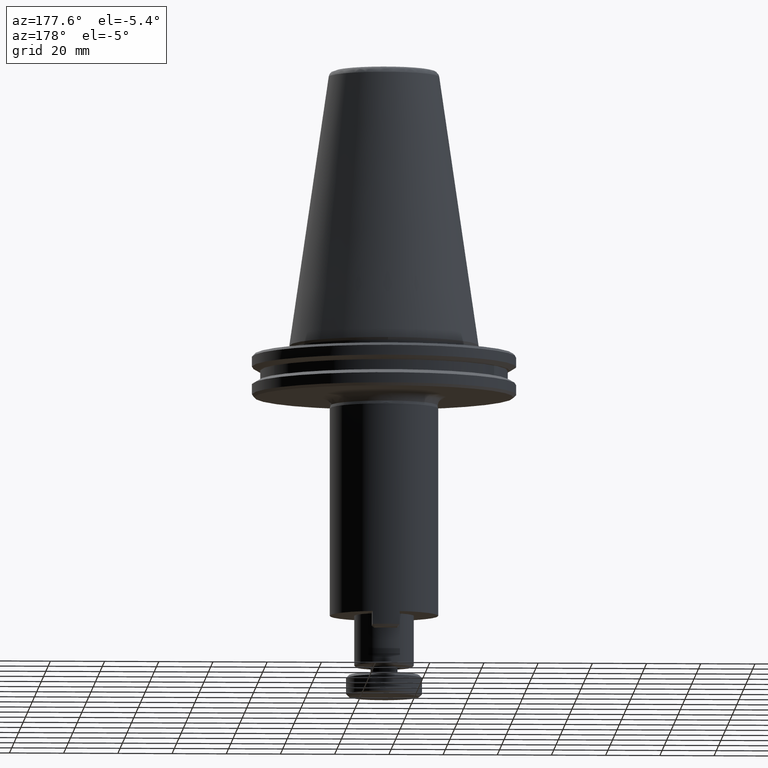
[diagram: clean part render]
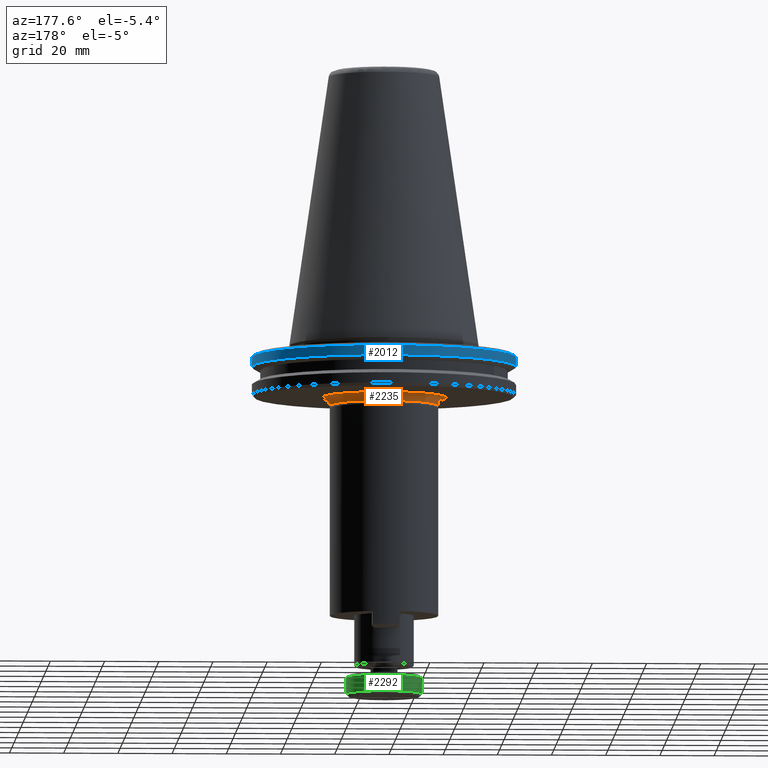
[diagram: same view with three faces highlighted in distinct colors, each labeled with its STEP entity id]
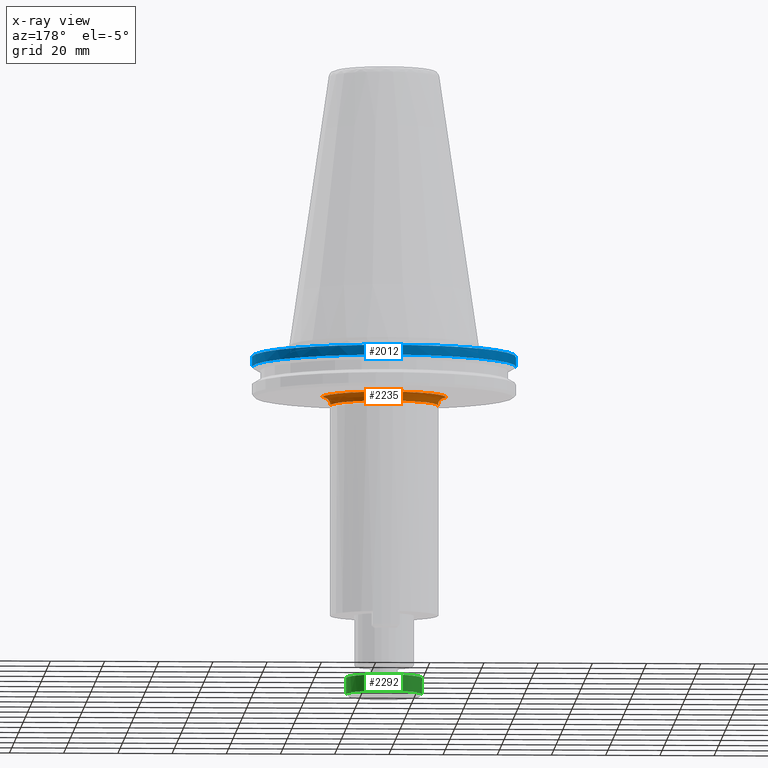
[diagram: x-ray of the same camera — body ghosted, the three highlighted faces saturated]
A machine part, auxiliary view with three faces highlighted in distinct colors.
The next image is the same camera in x-ray (body ghosted, the three faces saturated) — at least one of them is partly hidden behind the body in this view.
Their STEP definitions:

[orange] entity #2235 — the highlighted face is a freeform B-spline surface patch.
#37 = ORIENTED_EDGE ( 'NONE', *, *, #1304, .F. ) ;
#44 = CARTESIAN_POINT ( 'NONE',  ( 69.82967041055849200, 141.6437029630840200, 78.29158864688048400 ) ) ;
#101 = CARTESIAN_POINT ( 'NONE',  ( 69.08611592185569400, 112.6979040630085800, 79.55142735088048800 ) ) ;
#131 = CARTESIAN_POINT ( 'NONE',  ( 112.2400091371738900, 102.4230254990840100, 79.55142735095384400 ) ) ;
#162 = CARTESIAN_POINT ( 'NONE',  ( 79.42659639946742800, 122.9088401011851500, 79.55142735088047300 ) ) ;
#172 = CARTESIAN_POINT ( 'NONE',  ( 100.2173177748814500, 122.5150694197451700, 79.55142735088048800 ) ) ;
#182 = CARTESIAN_POINT ( 'NONE',  ( 95.82956039122231600, 124.3116237566803500, 79.55142735088047300 ) ) ;
#192 = CARTESIAN_POINT ( 'NONE',  ( 74.53022195948841500, 119.6723377473868100, 79.55142735088048800 ) ) ;
#201 = CARTESIAN_POINT ( 'NONE',  ( 67.57192797645257100, 108.8749657311327900, 79.55142735088047300 ) ) ;
#202 = CARTESIAN_POINT ( 'NONE',  ( 111.3380267558167800, 108.7725781759253900, 79.55142735088047300 ) ) ;
#209 = CARTESIAN_POINT ( 'NONE',  ( 100.3367708077787800, 122.4506467586634100, 79.55142735088047300 ) ) ;
#211 = CARTESIAN_POINT ( 'NONE',  ( 107.6935809425755100, 116.0849135061009200, 79.55142735088047300 ) ) ;
#218 = CARTESIAN_POINT ( 'NONE',  ( 100.5033496748084000, 122.3595147775322300, 79.55142735088047300 ) ) ;
#219 = CARTESIAN_POINT ( 'NONE',  ( 107.6875039913910700, 116.0930310580290600, 79.55142735088047300 ) ) ;
#234 = CARTESIAN_POINT ( 'NONE',  ( 110.4082262411640700, 111.3873885215951800, 79.55142735088047300 ) ) ;
#278 = CARTESIAN_POINT ( 'NONE',  ( 110.4998478465585000, 102.4230254990840200, 79.74108861888048200 ) ) ;
#328 = CARTESIAN_POINT ( 'NONE',  ( 71.23007053101334000, 116.1430164842722800, 79.55142735088050200 ) ) ;
#329 = CARTESIAN_POINT ( 'NONE',  ( 109.2400091424898400, 102.4230254990840100, 76.55142735182478500 ) ) ;
#339 = CARTESIAN_POINT ( 'NONE',  ( 71.21502867099320600, 116.1230315020119400, 79.55142735088045900 ) ) ;
#376 = CARTESIAN_POINT ( 'NONE',  ( 66.64000914794310400, 102.4230254990840100, 79.55142735095384400 ) ) ;
#384 = CARTESIAN_POINT ( 'NONE',  ( 66.85874957392455500, 105.5739982499407700, 79.55142735088047300 ) ) ;
#397 = CARTESIAN_POINT ( 'NONE',  ( 95.16390518570659700, 124.4929173802060400, 79.55142735088048800 ) ) ;
#398 = CARTESIAN_POINT ( 'NONE',  ( 67.18239086190111200, 107.4247439521679000, 79.55142735088045900 ) ) ;
#417 = CARTESIAN_POINT ( 'NONE',  ( 100.1948072163147100, 122.5271311004023000, 79.55142735088047300 ) ) ;
#426 = CARTESIAN_POINT ( 'NONE',  ( 83.94289279294949300, 124.5504977346862900, 79.55142735088047300 ) ) ;
#438 = CARTESIAN_POINT ( 'NONE',  ( 85.44615269204958000, 124.8796524350692900, 79.55142735088047300 ) ) ;
#446 = CARTESIAN_POINT ( 'NONE',  ( 77.94467221972819000, 122.1322499534878400, 79.55142735088047300 ) ) ;
#450 = CARTESIAN_POINT ( 'NONE',  ( 104.4522274386165000, 119.5832690376997200, 79.55142735088047300 ) ) ;
#459 = CARTESIAN_POINT ( 'NONE',  ( 75.61853575680871100, 120.5654559239073400, 79.55142735088047300 ) ) ;
#460 = CARTESIAN_POINT ( 'NONE',  ( 104.5070229961280400, 119.5351715291437700, 79.55142735088045900 ) ) ;
#461 = CARTESIAN_POINT ( 'NONE',  ( 111.4639882672898600, 108.3239058157237900, 79.55142735088047300 ) ) ;
#471 = CARTESIAN_POINT ( 'NONE',  ( 109.6174578020515500, 113.0642541325533200, 79.55142735088047300 ) ) ;
#511 = CARTESIAN_POINT ( 'NONE',  ( 69.62502163855849300, 142.0530005070840200, 76.25192710088046500 ) ) ;
#528 = CARTESIAN_POINT ( 'NONE',  ( 68.38017043855848000, 144.5427029080840100, 79.74108861888048200 ) ) ;
#582 = CARTESIAN_POINT ( 'NONE',  ( 71.62701750753635100, 116.6571113885595700, 79.55142735088047300 ) ) ;
#592 = CARTESIAN_POINT ( 'NONE',  ( 72.98808305552374500, 118.2440280811069600, 79.55142735088047300 ) ) ;
#602 = CARTESIAN_POINT ( 'NONE',  ( 112.1411967943297600, 104.5697013495551900, 79.55142735088045900 ) ) ;
#629 = CARTESIAN_POINT ( 'NONE',  ( 112.0465614859420600, 105.3867891194260400, 79.55142735088047300 ) ) ;
#633 = CARTESIAN_POINT ( 'NONE',  ( 67.56337267522347600, 108.8458559288796200, 79.55142735088051600 ) ) ;
#647 = CARTESIAN_POINT ( 'NONE',  ( 95.10983181770991700, 124.5068758695078800, 79.55142735088047300 ) ) ;
#648 = CARTESIAN_POINT ( 'NONE',  ( 67.55768158021317000, 108.8264444339003200, 79.55142735088050200 ) ) ;
#656 = CARTESIAN_POINT ( 'NONE',  ( 66.70731026624778800, 104.4461434361665900, 79.55142735088047300 ) ) ;
#681 = CARTESIAN_POINT ( 'NONE',  ( 73.84587525367817300, 119.0754966413940500, 79.55142735088050200 ) ) ;
#682 = CARTESIAN_POINT ( 'NONE',  ( 68.96550495089542200, 112.4547087698491300, 79.55142735088045900 ) ) ;
#691 = CARTESIAN_POINT ( 'NONE',  ( 78.76145082909438600, 122.5677288363557300, 79.55142735088045900 ) ) ;
#692 = CARTESIAN_POINT ( 'NONE',  ( 107.7746600585674900, 115.9760298940223700, 79.55142735088050200 ) ) ;
#696 = EDGE_CURVE ( 'NONE', #2432, #1302, #2472, .T. ) ;
#701 = CARTESIAN_POINT ( 'NONE',  ( 103.7777907613416100, 120.1719445585520000, 79.55142735088044500 ) ) ;
#717 = CARTESIAN_POINT ( 'NONE',  ( 111.1470637962499200, 109.4275439282103000, 79.55142735088051600 ) ) ;
#736 = CARTESIAN_POINT ( 'NONE',  ( 108.0537896206017600, 115.5921403285894200, 79.55142735088047300 ) ) ;
#752 = VERTEX_POINT ( 'NONE', #329 ) ;
#762 = CARTESIAN_POINT ( 'NONE',  ( 109.2549966465584800, 142.0530005070840200, 76.25192710088046500 ) ) ;
#777 = CARTESIAN_POINT ( 'NONE',  ( 112.5395093925585000, 102.4230254990840100, 79.53643984688046900 ) ) ;
#842 = CARTESIAN_POINT ( 'NONE',  ( 66.64000914794310400, 102.4230254990840100, 79.55142735095384400 ) ) ;
#891 = CARTESIAN_POINT ( 'NONE',  ( 66.64005363040263300, 103.4372938787043400, 79.55142735088047300 ) ) ;
#930 = CARTESIAN_POINT ( 'NONE',  ( 68.27578919061875200, 110.9466696974165700, 79.55142735088048800 ) ) ;
#951 = CARTESIAN_POINT ( 'NONE',  ( 107.7071312116274700, 116.0667885552121000, 79.55142735088047300 ) ) ;
#967 = CARTESIAN_POINT ( 'NONE',  ( 111.3455128429749000, 108.7467372357636700, 79.55142735088047300 ) ) ;
#1011 = FACE_OUTER_BOUND ( 'NONE', #1449, .T. ) ;
#1012 = CARTESIAN_POINT ( 'NONE',  ( 66.34050889255848900, 148.6220259990840000, 79.53643984688046900 ) ) ;
#1092 = CARTESIAN_POINT ( 'NONE',  ( 109.2400091424898400, 102.4230254990840100, 76.55142735182478500 ) ) ;
#1127 = CARTESIAN_POINT ( 'NONE',  ( 66.87629578830949100, 105.6982921994538300, 79.55142735088047300 ) ) ;
#1138 = CARTESIAN_POINT ( 'NONE',  ( 66.64000914794310400, 102.4230254990840100, 79.55142735095384400 ) ) ;
#1151 = CARTESIAN_POINT ( 'NONE',  ( 87.07691849041386000, 125.1354511577485500, 79.55142735088047300 ) ) ;
#1168 = CARTESIAN_POINT ( 'NONE',  ( 69.01547330124076000, 112.5562183748032400, 79.55142735088047300 ) ) ;
#1183 = CARTESIAN_POINT ( 'NONE',  ( 84.05816659884996500, 124.5788229419997300, 79.55142735088047300 ) ) ;
#1186 = CARTESIAN_POINT ( 'NONE',  ( 107.7274350831099400, 116.0395881701616200, 79.55142735088047300 ) ) ;
#1193 = CARTESIAN_POINT ( 'NONE',  ( 110.0570601310678900, 112.1589619769150100, 79.55142735088047300 ) ) ;
#1204 = CARTESIAN_POINT ( 'NONE',  ( 108.4147082614181800, 115.0735144850850600, 79.55142735088047300 ) ) ;
#1218 = CARTESIAN_POINT ( 'NONE',  ( 111.3971559865614000, 108.5656981084851900, 79.55142735088047300 ) ) ;
#1234 =( BOUNDED_SURFACE ( )  B_SPLINE_SURFACE ( 3, 3, ( 
 ( #2708, #762, #511, #1248 ),
 ( #2942, #1494, #44, #1749 ),
 ( #278, #1981, #528, #2234 ),
 ( #777, #2473, #1012, #2722 ) ),
 .UNSPECIFIED., .F., .F., .F. ) 
 B_SPLINE_SURFACE_WITH_KNOTS ( ( 4, 4 ),
 ( 4, 4 ),
 ( 0.0000000000000000000, 1.000000000000000000 ),
 ( 0.0000000000000000000, 1.000000000000000000 ),
 .UNSPECIFIED. ) 
 GEOMETRIC_REPRESENTATION_ITEM ( )  RATIONAL_B_SPLINE_SURFACE ( (
 ( 1.000000000000000000, 0.3333333333333330400, 0.3333333333333330400, 1.000000000000000000),
 ( 0.7553208711179720800, 0.2517736237059909900, 0.2517736237059909900, 0.7553208711179720800),
 ( 0.7553208711179720800, 0.2517736237059909900, 0.2517736237059909900, 0.7553208711179720800),
 ( 1.000000000000000000, 0.3333333333333330400, 0.3333333333333330400, 1.000000000000000000) ) ) 
 REPRESENTATION_ITEM ( '' )  SURFACE ( )  );
#1248 = CARTESIAN_POINT ( 'NONE',  ( 69.62502163855849300, 102.4230254990840100, 76.25192710088047900 ) ) ;
#1302 = VERTEX_POINT ( 'NONE', #842 ) ;
#1304 = EDGE_CURVE ( 'NONE', #1993, #752, #2576, .T. ) ;
#1313 = CARTESIAN_POINT ( 'NONE',  ( 72.06736594745760300, 117.1986404491273200, 79.55142735088048800 ) ) ;
#1324 = CARTESIAN_POINT ( 'NONE',  ( 89.44000914255849500, 102.4230254990840100, 76.55142735184156800 ) ) ;
#1368 = CARTESIAN_POINT ( 'NONE',  ( 112.0667353713408300, 105.2297853747960500, 79.55142735088048800 ) ) ;
#1415 = CARTESIAN_POINT ( 'NONE',  ( 80.15123694124376600, 123.2543508553091700, 79.55142735088045900 ) ) ;
#1425 = CARTESIAN_POINT ( 'NONE',  ( 109.0979600279792500, 114.0130407766119700, 79.55142735088047300 ) ) ;
#1432 = CARTESIAN_POINT ( 'NONE',  ( 104.9527272468112900, 119.1343284125098400, 79.55142735088048800 ) ) ;
#1434 = CARTESIAN_POINT ( 'NONE',  ( 69.64000914262715000, 102.4230254990840100, 76.55142735182479900 ) ) ;
#1449 = EDGE_LOOP ( 'NONE', ( #2810, #2515, #37, #1663 ) ) ;
#1494 = CARTESIAN_POINT ( 'NONE',  ( 109.0503478745585000, 141.6437029630840200, 78.29158864688048400 ) ) ;
#1541 =( BOUNDED_CURVE ( )  B_SPLINE_CURVE ( 3, ( #376, #1844, #3061, #1611 ),
 .UNSPECIFIED., .F., .F. ) 
 B_SPLINE_CURVE_WITH_KNOTS ( ( 4, 4 ),
 ( 0.06314145782159276400, 0.9368585430866575000 ),
 .UNSPECIFIED. ) 
 CURVE ( )  GEOMETRIC_REPRESENTATION_ITEM ( )  RATIONAL_B_SPLINE_CURVE ( ( 0.9565783016390720900, 0.7697947703774487000, 0.7697947705716148300, 0.9565783022215700300 ) ) 
 REPRESENTATION_ITEM ( '' )  );
#1548 = CARTESIAN_POINT ( 'NONE',  ( 69.52669690092005800, 113.5376031970678500, 79.55142735088047300 ) ) ;
#1562 = CARTESIAN_POINT ( 'NONE',  ( 69.22979048528196700, 112.9797875829661100, 79.55142735088051600 ) ) ;
#1570 = DIRECTION ( 'NONE',  ( -1.000000000000000000, 0.0000000000000000000, 0.0000000000000000000 ) ) ;
#1585 = CARTESIAN_POINT ( 'NONE',  ( 110.4826498267742200, 102.4230254990840200, 79.55142734763285300 ) ) ;
#1587 =( BOUNDED_CURVE ( )  B_SPLINE_CURVE ( 3, ( #1092, #2553, #1585, #131 ),
 .UNSPECIFIED., .F., .F. ) 
 B_SPLINE_CURVE_WITH_KNOTS ( ( 4, 4 ),
 ( 0.06314145691334782700, 0.9368585421784145800 ),
 .UNSPECIFIED. ) 
 CURVE ( )  GEOMETRIC_REPRESENTATION_ITEM ( )  RATIONAL_B_SPLINE_CURVE ( ( 0.9565783022215668100, 0.7697947705716131600, 0.7697947703774497000, 0.9565783016390767600 ) ) 
 REPRESENTATION_ITEM ( '' )  );
#1602 = EDGE_CURVE ( 'NONE', #1302, #1993, #1541, .T. ) ;
#1611 = CARTESIAN_POINT ( 'NONE',  ( 69.64000914262715000, 102.4230254990840100, 76.55142735182479900 ) ) ;
#1631 = CARTESIAN_POINT ( 'NONE',  ( 66.84656609331878500, 105.4851378505647100, 79.55142735088047300 ) ) ;
#1633 = CARTESIAN_POINT ( 'NONE',  ( 95.44204572761576300, 124.4193770214126100, 79.55142735088047300 ) ) ;
#1639 = CARTESIAN_POINT ( 'NONE',  ( 112.0933936793501700, 105.0098769722517200, 79.55142735088045900 ) ) ;
#1663 = ORIENTED_EDGE ( 'NONE', *, *, #1602, .F. ) ;
#1665 = CARTESIAN_POINT ( 'NONE',  ( 74.59185953859027100, 119.7255513547053200, 79.55142735088047300 ) ) ;
#1667 = CARTESIAN_POINT ( 'NONE',  ( 67.71623594806614200, 109.3486029817321700, 79.55142735088047300 ) ) ;
#1677 = CARTESIAN_POINT ( 'NONE',  ( 74.48918446891139000, 119.6367824145703800, 79.55142735088050200 ) ) ;
#1680 = CARTESIAN_POINT ( 'NONE',  ( 104.5632896054301400, 119.4855742377161500, 79.55142735088047300 ) ) ;
#1688 = CARTESIAN_POINT ( 'NONE',  ( 105.4601677720303600, 118.6551612183344100, 79.55142735088048800 ) ) ;
#1749 = CARTESIAN_POINT ( 'NONE',  ( 69.82967041055849200, 102.4230254990840200, 78.29158864688047000 ) ) ;
#1829 = CARTESIAN_POINT ( 'NONE',  ( 111.5907091348487900, 107.8389265225782900, 79.55142735088047300 ) ) ;
#1844 = CARTESIAN_POINT ( 'NONE',  ( 68.39736845834282500, 102.4230254990840100, 79.55142734763281000 ) ) ;
#1862 = CARTESIAN_POINT ( 'NONE',  ( 93.21183737242483900, 124.9890443715788400, 79.55142735088050200 ) ) ;
#1873 = CARTESIAN_POINT ( 'NONE',  ( 95.27525629801985500, 124.4637430902561300, 79.55142735088045900 ) ) ;
#1880 = CARTESIAN_POINT ( 'NONE',  ( 74.46705185494225500, 119.6175330351119600, 79.55142735088048800 ) ) ;
#1892 = CARTESIAN_POINT ( 'NONE',  ( 75.02730841088090600, 120.0921964025350500, 79.55142735088048800 ) ) ;
#1893 = CARTESIAN_POINT ( 'NONE',  ( 67.63272936203087200, 109.0783697763311300, 79.55142735088047300 ) ) ;
#1900 = CARTESIAN_POINT ( 'NONE',  ( 67.89160822389965200, 109.8857361758597300, 79.55142735088047300 ) ) ;
#1908 = CARTESIAN_POINT ( 'NONE',  ( 104.4694516698759100, 119.5681810868954100, 79.55142735088048800 ) ) ;
#1917 = CARTESIAN_POINT ( 'NONE',  ( 99.35705899573429200, 122.9739991587563800, 79.55142735088050200 ) ) ;
#1930 = CARTESIAN_POINT ( 'NONE',  ( 109.9520844616856200, 112.3776612586431900, 79.55142735088047300 ) ) ;
#1941 = CARTESIAN_POINT ( 'NONE',  ( 110.8371525403569700, 110.3438091548064400, 79.55142735088044500 ) ) ;
#1981 = CARTESIAN_POINT ( 'NONE',  ( 110.4998478465585000, 144.5427029080840100, 79.74108861888048200 ) ) ;
#1993 = VERTEX_POINT ( 'NONE', #1434 ) ;
#2043 = CARTESIAN_POINT ( 'NONE',  ( 71.25265565376020000, 116.1729729361843800, 79.55142735088045900 ) ) ;
#2054 = CARTESIAN_POINT ( 'NONE',  ( 71.20679014818577500, 116.1120654373874400, 79.55142735088047300 ) ) ;
#2096 = CARTESIAN_POINT ( 'NONE',  ( 112.0527170297061600, 105.3396947238672100, 79.55142735088048800 ) ) ;
#2102 = CARTESIAN_POINT ( 'NONE',  ( 66.91311530485666000, 105.9464897116095400, 79.55142735088048800 ) ) ;
#2112 = CARTESIAN_POINT ( 'NONE',  ( 67.39152941765426900, 108.2569682812006400, 79.55142735088047300 ) ) ;
#2132 = CARTESIAN_POINT ( 'NONE',  ( 88.49055074790209100, 125.2230929078495500, 79.55142735088048800 ) ) ;
#2142 = CARTESIAN_POINT ( 'NONE',  ( 67.59202095698360300, 108.9428365215462500, 79.55142735088048800 ) ) ;
#2159 = CARTESIAN_POINT ( 'NONE',  ( 74.73624995914855200, 119.8488806951057500, 79.55142735088047300 ) ) ;
#2160 = CARTESIAN_POINT ( 'NONE',  ( 104.6939456999350000, 119.3692665407830900, 79.55142735088048800 ) ) ;
#2168 = CARTESIAN_POINT ( 'NONE',  ( 84.23115977125145500, 124.6206252618350200, 79.55142735088047300 ) ) ;
#2177 = CARTESIAN_POINT ( 'NONE',  ( 107.8685071108095300, 115.8485504976585600, 79.55142735088047300 ) ) ;
#2192 = CARTESIAN_POINT ( 'NONE',  ( 111.3308364122151600, 108.7973298982445400, 79.55142735088047300 ) ) ;
#2220 = CARTESIAN_POINT ( 'NONE',  ( 112.2400091371738900, 102.4230254990840100, 79.55142735095384400 ) ) ;
#2234 = CARTESIAN_POINT ( 'NONE',  ( 68.38017043855850800, 102.4230254990840200, 79.74108861888048200 ) ) ;
#2235 = ADVANCED_FACE ( 'NONE', ( #1011 ), #1234, .F. ) ;
#2288 = CARTESIAN_POINT ( 'NONE',  ( 71.41184581610372100, 116.3816380471313000, 79.55142735088047300 ) ) ;
#2343 = CARTESIAN_POINT ( 'NONE',  ( 66.99366268905967600, 106.4413231884386200, 79.55142735088047300 ) ) ;
#2356 = CARTESIAN_POINT ( 'NONE',  ( 78.73453253973082200, 122.5534357630679100, 79.55142735088047300 ) ) ;
#2357 = CARTESIAN_POINT ( 'NONE',  ( 66.85141481287853100, 105.5206875872704000, 79.55142735088045900 ) ) ;
#2364 = CARTESIAN_POINT ( 'NONE',  ( 112.0424249716407700, 105.4181832473128400, 79.55142735088047300 ) ) ;
#2375 = CARTESIAN_POINT ( 'NONE',  ( 98.10814955357471900, 123.5465959202268500, 79.55142735088048800 ) ) ;
#2385 = CARTESIAN_POINT ( 'NONE',  ( 68.95555536950976700, 112.4343793943642300, 79.55142735088048800 ) ) ;
#2386 = CARTESIAN_POINT ( 'NONE',  ( 110.1769222997381900, 111.9028290222629400, 79.55142735088047300 ) ) ;
#2398 = CARTESIAN_POINT ( 'NONE',  ( 109.9393432475360000, 112.4038770876007200, 79.55142735088045900 ) ) ;
#2407 = CARTESIAN_POINT ( 'NONE',  ( 101.4866311598551500, 121.7894930460938100, 79.55142735088048800 ) ) ;
#2416 = CARTESIAN_POINT ( 'NONE',  ( 111.3628718844599200, 108.6864199164129400, 79.55142735088047300 ) ) ;
#2426 = CARTESIAN_POINT ( 'NONE',  ( 109.9960764972433900, 112.2866316303207700, 79.55142735088047300 ) ) ;
#2432 = VERTEX_POINT ( 'NONE', #2220 ) ;
#2472 = B_SPLINE_CURVE_WITH_KNOTS ( 'NONE', 3,
 ( #2579, #3056, #2608, #602, #1639, #1368, #2096, #629, #2364, #3066, #2590, #2807, #1829, #461, #1218, #2416, #967, #202, #2873, #2192, #717, #1941, #234, #2386, #1193, #2426, #2678, #1930, #2633, #2398, #471, #1425, #1204, #736, #2177, #692, #1186, #951, #211, #219, #2884, #3132, #1688, #1432, #2160, #1680, #460, #1908, #450, #701, #3145, #2407, #2602, #218, #209, #2650, #172, #417, #1917, #2375, #3144, #182, #1633, #1873, #397, #647, #1862, #3096, #2132, #1151, #438, #2861, #2168, #1183, #426, #2641, #2870, #3070, #1415, #162, #3079, #2853, #2615, #691, #2356, #446, #3131, #459, #1892, #2159, #1665, #192, #1677, #1880, #681, #592, #1313, #582, #2288, #2534, #2043, #328, #339, #2054, #2995, #3011, #1548, #1562, #101, #1168, #2632, #682, #2385, #3119, #2862, #930, #1900, #1667, #1893, #2142, #201, #633, #648, #2824, #2112, #398, #2343, #2102, #1127, #384, #2357, #1631, #2613, #656, #891, #1138 ),
 .UNSPECIFIED., .F., .F.,
 ( 4, 1, 1, 1, 1, 1, 2, 2, 1, 1, 1, 1, 1, 1, 2, 2, 1, 1, 1, 1, 1, 1, 2, 2, 1, 1, 1, 1, 1, 1, 2, 2, 1, 1, 1, 1, 1, 2, 2, 1, 1, 1, 1, 1, 2, 2, 1, 1, 1, 1, 2, 2, 2, 1, 1, 1, 1, 2, 2, 1, 1, 1, 1, 1, 2, 2, 1, 1, 1, 1, 1, 2, 2, 1, 1, 1, 1, 1, 1, 2, 2, 1, 1, 1, 1, 1, 1, 2, 2, 1, 1, 1, 1, 1, 1, 2, 2, 1, 1, 1, 1, 1, 2, 2, 4 ),
 ( 0.0000000000000000000, 0.03125000000000267800, 0.04687500000000401800, 0.05468750000000507200, 0.05859375000000516900, 0.06054687500000521800, 0.06152343750000566900, 0.06250000000000612000, 0.09375000000001870700, 0.1093750000000249200, 0.1171875000000276600, 0.1210937500000287500, 0.1230468750000292000, 0.1240234375000293200, 0.1245117187500290200, 0.1250000000000287300, 0.1562500000000352800, 0.1718750000000386600, 0.1796875000000403600, 0.1835937500000413600, 0.1855468750000416900, 0.1865234375000423000, 0.1870117187500423000, 0.1875000000000423300, 0.2187500000000396100, 0.2343750000000382500, 0.2421875000000375500, 0.2460937500000369700, 0.2480468750000368600, 0.2490234375000370500, 0.2495117187500369400, 0.2500000000000368600, 0.2812500000000401300, 0.2968750000000419700, 0.3046875000000430800, 0.3085937500000436300, 0.3105468750000436900, 0.3115234375000439100, 0.3125000000000441300, 0.3437500000000479100, 0.3593750000000497900, 0.3671875000000510700, 0.3710937500000519600, 0.3730468750000521800, 0.3740234375000521200, 0.3750000000000521200, 0.4062500000000518500, 0.4218750000000518500, 0.4296875000000516300, 0.4335937500000514600, 0.4355468750000513500, 0.4375000000000512900, 0.5000000000000390800, 0.5312500000000332000, 0.5468750000000300900, 0.5546875000000285300, 0.5585937500000275300, 0.5605468750000272000, 0.5625000000000267600, 0.5937500000000224300, 0.6093750000000202100, 0.6171875000000191000, 0.6210937500000184300, 0.6230468750000182100, 0.6240234375000179900, 0.6250000000000176500, 0.6562500000000154300, 0.6718750000000142100, 0.6796875000000136600, 0.6835937500000134300, 0.6855468750000131000, 0.6865234375000132100, 0.6875000000000133200, 0.7187500000000129900, 0.7343750000000128800, 0.7421875000000126600, 0.7460937500000127700, 0.7480468750000129900, 0.7490234375000127700, 0.7495117187500126600, 0.7500000000000124300, 0.7812499999999872300, 0.7968749999999749100, 0.8046874999999691400, 0.8085937499999658100, 0.8105468749999642500, 0.8115234374999630300, 0.8120117187499622500, 0.8124999999999613600, 0.8437499999999374900, 0.8593749999999259500, 0.8671874999999201700, 0.8710937499999174000, 0.8730468749999160700, 0.8740234374999158500, 0.8745117187499157300, 0.8749999999999156200, 0.9062499999999347200, 0.9218749999999438200, 0.9296874999999480400, 0.9335937499999502600, 0.9355468749999517100, 0.9365234374999523700, 0.9374999999999530400, 1.000000000000000000 ),
 .UNSPECIFIED. ) ;
#2473 = CARTESIAN_POINT ( 'NONE',  ( 112.5395093925585000, 148.6220259990840000, 79.53643984688046900 ) ) ;
#2474 = EDGE_CURVE ( 'NONE', #752, #2432, #1587, .T. ) ;
#2515 = ORIENTED_EDGE ( 'NONE', *, *, #2474, .F. ) ;
#2534 = CARTESIAN_POINT ( 'NONE',  ( 71.30551060251939100, 116.2427241736310600, 79.55142735088048800 ) ) ;
#2536 = AXIS2_PLACEMENT_3D ( 'NONE', #1324, #3019, #1570 ) ;
#2553 = CARTESIAN_POINT ( 'NONE',  ( 109.2400091432226500, 102.4230254990840100, 78.30878666181125400 ) ) ;
#2576 = CIRCLE ( 'NONE', #2536, 19.79999999987772000 ) ;
#2579 = CARTESIAN_POINT ( 'NONE',  ( 112.2400091371738900, 102.4230254990840100, 79.55142735095384400 ) ) ;
#2590 = CARTESIAN_POINT ( 'NONE',  ( 111.9621910158114700, 106.0176504677112900, 79.55142735088047300 ) ) ;
#2602 = CARTESIAN_POINT ( 'NONE',  ( 100.8341943064203000, 122.1739322660339200, 79.55142735088047300 ) ) ;
#2608 = CARTESIAN_POINT ( 'NONE',  ( 112.2147490201321700, 103.6879148337303000, 79.55142735088047300 ) ) ;
#2613 = CARTESIAN_POINT ( 'NONE',  ( 66.84388013029683900, 105.4652527767099000, 79.55142735088047300 ) ) ;
#2615 = CARTESIAN_POINT ( 'NONE',  ( 78.81236214699718800, 122.5946333964162800, 79.55142735088048800 ) ) ;
#2632 = CARTESIAN_POINT ( 'NONE',  ( 68.98045065620783600, 112.4851895486438500, 79.55142735088047300 ) ) ;
#2633 = CARTESIAN_POINT ( 'NONE',  ( 109.9432472104857400, 112.3958525396153900, 79.55142735088047300 ) ) ;
#2641 = CARTESIAN_POINT ( 'NONE',  ( 83.88347362396798700, 124.5356471517298000, 79.55142735088047300 ) ) ;
#2650 = CARTESIAN_POINT ( 'NONE',  ( 100.2651320323611100, 122.4893477631587000, 79.55142735088047300 ) ) ;
#2678 = CARTESIAN_POINT ( 'NONE',  ( 109.9653215429587900, 112.3503672510434700, 79.55142735088048800 ) ) ;
#2708 = CARTESIAN_POINT ( 'NONE',  ( 109.2549966465585000, 102.4230254990840100, 76.25192710088047900 ) ) ;
#2722 = CARTESIAN_POINT ( 'NONE',  ( 66.34050889255848900, 102.4230254990840100, 79.53643984688046900 ) ) ;
#2807 = CARTESIAN_POINT ( 'NONE',  ( 111.8163760943749300, 106.8633891057958000, 79.55142735088047300 ) ) ;
#2810 = ORIENTED_EDGE ( 'NONE', *, *, #696, .F. ) ;
#2824 = CARTESIAN_POINT ( 'NONE',  ( 67.55451663963947300, 108.8156201427287600, 79.55142735088050200 ) ) ;
#2853 = CARTESIAN_POINT ( 'NONE',  ( 78.88878699117829300, 122.6348385169287800, 79.55142735088047300 ) ) ;
#2861 = CARTESIAN_POINT ( 'NONE',  ( 84.63538775171034000, 124.7133655701725800, 79.55142735088048800 ) ) ;
#2862 = CARTESIAN_POINT ( 'NONE',  ( 68.66240673075277800, 111.8331849444110400, 79.55142735088047300 ) ) ;
#2870 = CARTESIAN_POINT ( 'NONE',  ( 82.93534667670797900, 124.2949251883674600, 79.55142735088047300 ) ) ;
#2873 = CARTESIAN_POINT ( 'NONE',  ( 111.3330256981669500, 108.7898033939087800, 79.55142735088048800 ) ) ;
#2884 = CARTESIAN_POINT ( 'NONE',  ( 107.2003387437947900, 116.7426696738434500, 79.55142735088047300 ) ) ;
#2942 = CARTESIAN_POINT ( 'NONE',  ( 109.0503478745585000, 102.4230254990840200, 78.29158864688047000 ) ) ;
#2995 = CARTESIAN_POINT ( 'NONE',  ( 70.76602485594132500, 115.5244693949727400, 79.55142735088047300 ) ) ;
#3011 = CARTESIAN_POINT ( 'NONE',  ( 70.15873888733858600, 114.6294287220189600, 79.55142735088047300 ) ) ;
#3019 = DIRECTION ( 'NONE',  ( -0.0000000000000000000, -0.0000000000000000000, -1.000000000000000000 ) ) ;
#3056 = CARTESIAN_POINT ( 'NONE',  ( 112.2399869208368800, 102.9296373565685200, 79.55142735088047300 ) ) ;
#3061 = CARTESIAN_POINT ( 'NONE',  ( 69.64000914189433900, 102.4230254990840100, 78.30878666181122600 ) ) ;
#3066 = CARTESIAN_POINT ( 'NONE',  ( 112.0406157363341500, 105.4318217872135100, 79.55142735088045900 ) ) ;
#3070 = CARTESIAN_POINT ( 'NONE',  ( 81.62644258727904400, 123.8774019925245300, 79.55142735088047300 ) ) ;
#3079 = CARTESIAN_POINT ( 'NONE',  ( 79.06751669888956300, 122.7275884277441100, 79.55142735088047300 ) ) ;
#3096 = CARTESIAN_POINT ( 'NONE',  ( 91.33892593187485400, 125.2228906775049800, 79.55142735088047300 ) ) ;
#3119 = CARTESIAN_POINT ( 'NONE',  ( 68.95005243996114100, 112.4231125436660400, 79.55142735088045900 ) ) ;
#3131 = CARTESIAN_POINT ( 'NONE',  ( 76.83743221851686700, 121.4584873927073500, 79.55142735088048800 ) ) ;
#3132 = CARTESIAN_POINT ( 'NONE',  ( 106.4345585483347600, 117.6596630794685900, 79.55142735088047300 ) ) ;
#3144 = CARTESIAN_POINT ( 'NONE',  ( 96.59794702996583700, 124.0791874774929800, 79.55142735088047300 ) ) ;
#3145 = CARTESIAN_POINT ( 'NONE',  ( 102.7544952275687300, 120.9675178184395700, 79.55142735088047300 ) ) ;

[blue] entity #2012 — the highlighted cylindrical surface (partial cylindrical patch) has radius 48.75 mm, axis along (0, -0, 1).
#25 = VERTEX_POINT ( 'NONE', #2597 ) ;
#47 = VERTEX_POINT ( 'NONE', #1472 ) ;
#135 = DIRECTION ( 'NONE',  ( -1.000000000000000000, 0.0000000000000000000, 0.0000000000000000000 ) ) ;
#159 = DIRECTION ( 'NONE',  ( 0.0000000000000000000, -0.0000000000000000000, 1.000000000000000000 ) ) ;
#237 = EDGE_LOOP ( 'NONE', ( #1424, #2389, #882, #657, #1037 ) ) ;
#245 = LINE ( 'NONE', #3050, #1641 ) ;
#367 = DIRECTION ( 'NONE',  ( -0.0000000000000000000, -0.0000000000000000000, -1.000000000000000000 ) ) ;
#657 = ORIENTED_EDGE ( 'NONE', *, *, #778, .T. ) ;
#713 = DIRECTION ( 'NONE',  ( 0.0000000000000000000, -0.0000000000000000000, 1.000000000000000000 ) ) ;
#740 = DIRECTION ( 'NONE',  ( -0.0000000000000000000, -0.0000000000000000000, -1.000000000000000000 ) ) ;
#758 = EDGE_CURVE ( 'NONE', #25, #1753, #3063, .T. ) ;
#778 = EDGE_CURVE ( 'NONE', #862, #1753, #2291, .T. ) ;
#862 = VERTEX_POINT ( 'NONE', #1483 ) ;
#882 = ORIENTED_EDGE ( 'NONE', *, *, #2301, .T. ) ;
#990 = DIRECTION ( 'NONE',  ( -0.0000000000000000000, -0.0000000000000000000, -1.000000000000000000 ) ) ;
#1037 = ORIENTED_EDGE ( 'NONE', *, *, #758, .F. ) ;
#1111 = CIRCLE ( 'NONE', #2843, 48.74999999902873800 ) ;
#1292 = CIRCLE ( 'NONE', #1589, 48.74999999994424400 ) ;
#1354 = DIRECTION ( 'NONE',  ( 0.0000000000000000000, -0.0000000000000000000, 1.000000000000000000 ) ) ;
#1424 = ORIENTED_EDGE ( 'NONE', *, *, #2279, .F. ) ;
#1472 = CARTESIAN_POINT ( 'NONE',  ( 40.69000914261425100, 102.4230254990840100, 90.79902261484829800 ) ) ;
#1483 = CARTESIAN_POINT ( 'NONE',  ( 89.44000914255849500, 151.1730254981127600, 94.45142735185173400 ) ) ;
#1589 = AXIS2_PLACEMENT_3D ( 'NONE', #2195, #740, #2440 ) ;
#1591 = EDGE_CURVE ( 'NONE', #47, #1708, #245, .T. ) ;
#1592 = CARTESIAN_POINT ( 'NONE',  ( 89.44000914255850900, 102.4230254990840100, 94.45142735185173400 ) ) ;
#1641 = VECTOR ( 'NONE', #1354, 1000.000000000000000 ) ;
#1692 = DIRECTION ( 'NONE',  ( 1.000000000000000000, 0.0000000000000000000, 0.0000000000000000000 ) ) ;
#1708 = VERTEX_POINT ( 'NONE', #1865 ) ;
#1753 = VERTEX_POINT ( 'NONE', #2604 ) ;
#1832 = CYLINDRICAL_SURFACE ( 'NONE', #2311, 48.75000000000000000 ) ;
#1865 = CARTESIAN_POINT ( 'NONE',  ( 40.69000914352977100, 102.4230254990840100, 94.45142735185173400 ) ) ;
#2012 = ADVANCED_FACE ( 'NONE', ( #2200 ), #1832, .T. ) ;
#2172 = CARTESIAN_POINT ( 'NONE',  ( 89.44000914255849500, 102.4230254990840100, 90.79902261488047100 ) ) ;
#2195 = CARTESIAN_POINT ( 'NONE',  ( 89.44000914255849500, 102.4230254990840100, 90.79902261484829800 ) ) ;
#2200 = FACE_OUTER_BOUND ( 'NONE', #237, .T. ) ;
#2279 = EDGE_CURVE ( 'NONE', #47, #25, #1292, .T. ) ;
#2291 = CIRCLE ( 'NONE', #2609, 48.74999999902873800 ) ;
#2301 = EDGE_CURVE ( 'NONE', #1708, #862, #1111, .T. ) ;
#2311 = AXIS2_PLACEMENT_3D ( 'NONE', #2172, #713, #1692 ) ;
#2389 = ORIENTED_EDGE ( 'NONE', *, *, #1591, .T. ) ;
#2440 = DIRECTION ( 'NONE',  ( 1.000000000000000000, 0.0000000000000000000, 0.0000000000000000000 ) ) ;
#2447 = CARTESIAN_POINT ( 'NONE',  ( 89.44000914255850900, 102.4230254990840100, 94.45142735185173400 ) ) ;
#2597 = CARTESIAN_POINT ( 'NONE',  ( 138.1900091425027300, 102.4230254990840100, 90.79902261484829800 ) ) ;
#2599 = CARTESIAN_POINT ( 'NONE',  ( 138.1900091425584900, 102.4230254990840100, 90.79902261488047100 ) ) ;
#2604 = CARTESIAN_POINT ( 'NONE',  ( 138.1900091415872400, 102.4230254990840100, 94.45142735185173400 ) ) ;
#2609 = AXIS2_PLACEMENT_3D ( 'NONE', #1592, #367, #135 ) ;
#2694 = DIRECTION ( 'NONE',  ( -1.000000000000000000, 0.0000000000000000000, 0.0000000000000000000 ) ) ;
#2843 = AXIS2_PLACEMENT_3D ( 'NONE', #2447, #990, #2694 ) ;
#2874 = VECTOR ( 'NONE', #159, 1000.000000000000000 ) ;
#3050 = CARTESIAN_POINT ( 'NONE',  ( 40.69000914255849500, 102.4230254990840100, 90.79902261488047100 ) ) ;
#3063 = LINE ( 'NONE', #2599, #2874 ) ;

[green] entity #2292 — the highlighted cylindrical surface (partial cylindrical patch) has radius 14 mm, axis along (-0, -0, 1).
#57 = DIRECTION ( 'NONE',  ( -1.000000000000000000, 0.0000000000000000000, 0.0000000000000000000 ) ) ;
#208 = LINE ( 'NONE', #2866, #2958 ) ;
#216 = DIRECTION ( 'NONE',  ( -0.0000000000000000000, -0.0000000000000000000, 1.000000000000000000 ) ) ;
#246 = EDGE_CURVE ( 'NONE', #1876, #1402, #2922, .T. ) ;
#383 = VERTEX_POINT ( 'NONE', #1130 ) ;
#448 = AXIS2_PLACEMENT_3D ( 'NONE', #486, #979, #2904 ) ;
#486 = CARTESIAN_POINT ( 'NONE',  ( 89.44000914255849500, 102.4230254990840100, -20.34857264911954600 ) ) ;
#515 = ORIENTED_EDGE ( 'NONE', *, *, #1961, .T. ) ;
#658 = VERTEX_POINT ( 'NONE', #3091 ) ;
#743 = ORIENTED_EDGE ( 'NONE', *, *, #1256, .F. ) ;
#759 = VERTEX_POINT ( 'NONE', #1952 ) ;
#922 = DIRECTION ( 'NONE',  ( -0.0000000000000000000, -0.0000000000000000000, 1.000000000000000000 ) ) ;
#979 = DIRECTION ( 'NONE',  ( -0.0000000000000000000, -0.0000000000000000000, 1.000000000000000000 ) ) ;
#1130 = CARTESIAN_POINT ( 'NONE',  ( 89.44000914255849500, 116.4230254990840100, -24.34857264911953600 ) ) ;
#1139 = AXIS2_PLACEMENT_3D ( 'NONE', #1684, #216, #1912 ) ;
#1254 = EDGE_LOOP ( 'NONE', ( #515, #1506, #743, #2399, #2750 ) ) ;
#1256 = EDGE_CURVE ( 'NONE', #383, #1402, #1428, .T. ) ;
#1402 = VERTEX_POINT ( 'NONE', #2566 ) ;
#1428 = CIRCLE ( 'NONE', #1785, 13.99999999999999800 ) ;
#1504 = DIRECTION ( 'NONE',  ( -0.0000000000000000000, -0.0000000000000000000, 1.000000000000000000 ) ) ;
#1506 = ORIENTED_EDGE ( 'NONE', *, *, #246, .T. ) ;
#1684 = CARTESIAN_POINT ( 'NONE',  ( 89.44000914255849500, 102.4230254990840100, -30.34857264911952500 ) ) ;
#1730 = VECTOR ( 'NONE', #1895, 1000.000000000000000 ) ;
#1785 = AXIS2_PLACEMENT_3D ( 'NONE', #2957, #1504, #57 ) ;
#1825 = EDGE_CURVE ( 'NONE', #759, #383, #2900, .T. ) ;
#1876 = VERTEX_POINT ( 'NONE', #3115 ) ;
#1895 = DIRECTION ( 'NONE',  ( -0.0000000000000000000, -0.0000000000000000000, 1.000000000000000000 ) ) ;
#1912 = DIRECTION ( 'NONE',  ( 1.000000000000000000, 0.0000000000000000000, 0.0000000000000000000 ) ) ;
#1946 = EDGE_CURVE ( 'NONE', #658, #759, #208, .T. ) ;
#1952 = CARTESIAN_POINT ( 'NONE',  ( 103.4400091425584900, 102.4230254990840100, -24.34857264911953600 ) ) ;
#1961 = EDGE_CURVE ( 'NONE', #658, #1876, #2236, .T. ) ;
#2236 = CIRCLE ( 'NONE', #1139, 13.99999999999999800 ) ;
#2292 = ADVANCED_FACE ( 'NONE', ( #3099 ), #2936, .T. ) ;
#2379 = CARTESIAN_POINT ( 'NONE',  ( 89.44000914255849500, 102.4230254990840100, -24.34857264911953600 ) ) ;
#2399 = ORIENTED_EDGE ( 'NONE', *, *, #1825, .F. ) ;
#2400 = AXIS2_PLACEMENT_3D ( 'NONE', #2379, #922, #2626 ) ;
#2408 = CARTESIAN_POINT ( 'NONE',  ( 75.44000914255849500, 102.4230254990840100, -20.34857264911954600 ) ) ;
#2566 = CARTESIAN_POINT ( 'NONE',  ( 75.44000914255849500, 102.4230254990840100, -24.34857264911953600 ) ) ;
#2626 = DIRECTION ( 'NONE',  ( -1.000000000000000000, 0.0000000000000000000, 0.0000000000000000000 ) ) ;
#2750 = ORIENTED_EDGE ( 'NONE', *, *, #1946, .F. ) ;
#2866 = CARTESIAN_POINT ( 'NONE',  ( 103.4400091425584900, 102.4230254990840100, -20.34857264911954600 ) ) ;
#2900 = CIRCLE ( 'NONE', #2400, 13.99999999999999800 ) ;
#2904 = DIRECTION ( 'NONE',  ( 1.000000000000000000, 0.0000000000000000000, 0.0000000000000000000 ) ) ;
#2922 = LINE ( 'NONE', #2408, #1730 ) ;
#2936 = CYLINDRICAL_SURFACE ( 'NONE', #448, 13.99999999999999800 ) ;
#2957 = CARTESIAN_POINT ( 'NONE',  ( 89.44000914255849500, 102.4230254990840100, -24.34857264911953600 ) ) ;
#2958 = VECTOR ( 'NONE', #3126, 1000.000000000000000 ) ;
#3091 = CARTESIAN_POINT ( 'NONE',  ( 103.4400091425584900, 102.4230254990840100, -30.34857264911952500 ) ) ;
#3099 = FACE_OUTER_BOUND ( 'NONE', #1254, .T. ) ;
#3115 = CARTESIAN_POINT ( 'NONE',  ( 75.44000914255849500, 102.4230254990840100, -30.34857264911952500 ) ) ;
#3126 = DIRECTION ( 'NONE',  ( -0.0000000000000000000, -0.0000000000000000000, 1.000000000000000000 ) ) ;